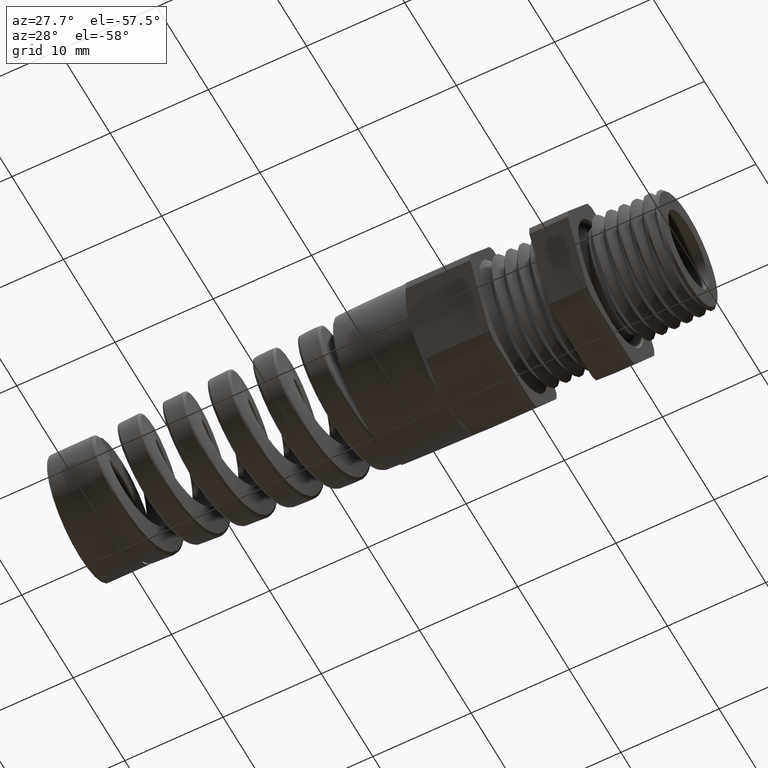
[diagram: clean part render]
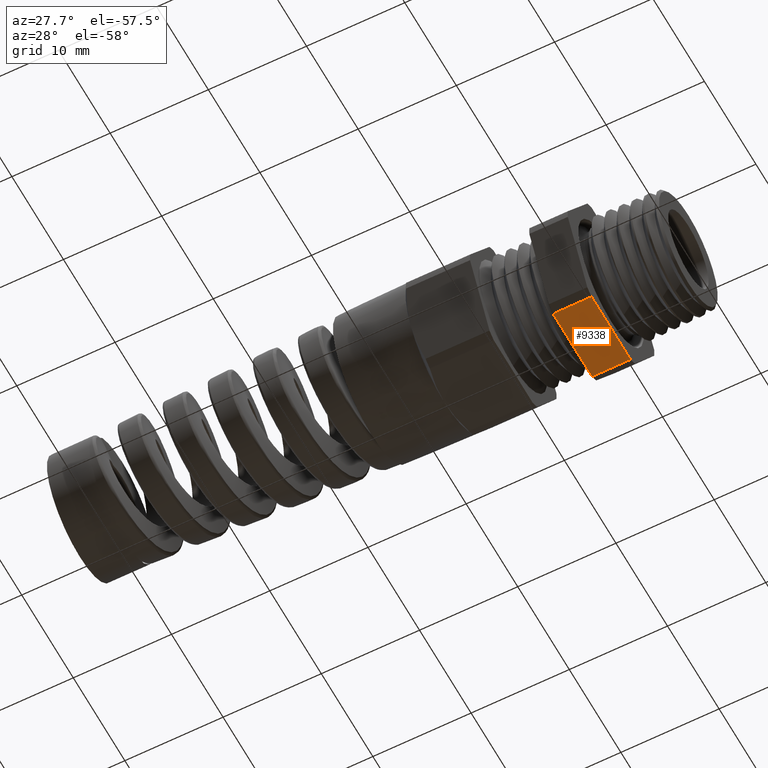
[diagram: same view with one face highlighted and labeled with its STEP entity id]
A machine part, auxiliary view. The second image highlights one B-rep face of the part: STEP entity #9338.
In plain terms, the highlighted planar face has unit normal (0, 0, -1).
Its self-contained STEP definition (entity closure, byte-faithful):
#2132 = CARTESIAN_POINT ( 'NONE',  ( -0.1542288557213930500, -0.1487923385124379500, -0.2950000000000002600 ) ) ;
#2133 = DIRECTION ( 'NONE',  ( 1.000000000000000000, 0.0000000000000000000, 0.0000000000000000000 ) ) ;
#2134 = VECTOR ( 'NONE', #2133, 39.37007874015748100 ) ;
#2135 = CARTESIAN_POINT ( 'NONE',  ( -1.612607445236302800, -0.1487923385124378900, -0.2950000000000003200 ) ) ;
#2136 = LINE ( 'NONE', #2135, #2134 ) ;
#2142 = DIRECTION ( 'NONE',  ( 1.000000000000000000, 0.0000000000000000000, 0.0000000000000000000 ) ) ;
#2143 = VECTOR ( 'NONE', #2142, 39.37007874015748100 ) ;
#2144 = CARTESIAN_POINT ( 'NONE',  ( -1.612607445236302800, 0.1487923385124379500, -0.2950000000000002600 ) ) ;
#2149 = LINE ( 'NONE', #2144, #2143 ) ;
#2158 = CARTESIAN_POINT ( 'NONE',  ( -0.1542288557213930500, 0.1487923385124379500, -0.2950000000000002600 ) ) ;
#2397 = DIRECTION ( 'NONE',  ( 0.0000000000000000000, 1.000000000000000000, 0.0000000000000000000 ) ) ;
#2398 = VECTOR ( 'NONE', #2397, 39.37007874015748100 ) ;
#2399 = CARTESIAN_POINT ( 'NONE',  ( -0.1542288557213930500, 0.2596999999999999900, -0.2950000000000002600 ) ) ;
#2400 = LINE ( 'NONE', #2399, #2398 ) ;
#3630 = CARTESIAN_POINT ( 'NONE',  ( 0.0000000000000000000, -0.1487923385124378900, -0.2950000000000003200 ) ) ;
#3631 = CARTESIAN_POINT ( 'NONE',  ( 0.0000000000000000000, 0.1487923385124379500, -0.2950000000000002600 ) ) ;
#3656 = DIRECTION ( 'NONE',  ( 0.0000000000000000000, 1.000000000000000000, 0.0000000000000000000 ) ) ;
#3657 = VECTOR ( 'NONE', #3656, 39.37007874015748100 ) ;
#3658 = CARTESIAN_POINT ( 'NONE',  ( 0.0000000000000000000, -0.1487923385124379500, -0.2950000000000002600 ) ) ;
#3659 = LINE ( 'NONE', #3658, #3657 ) ;
#3688 = DIRECTION ( 'NONE',  ( -1.000000000000000000, 0.0000000000000000000, 0.0000000000000000000 ) ) ;
#3689 = DIRECTION ( 'NONE',  ( 0.0000000000000000000, 0.0000000000000000000, -1.000000000000000000 ) ) ;
#3690 = CARTESIAN_POINT ( 'NONE',  ( -1.612607445236302800, -0.1487923385124379500, -0.2950000000000002600 ) ) ;
#3691 = AXIS2_PLACEMENT_3D ( 'NONE', #3690, #3689, #3688 ) ;
#3692 = PLANE ( 'NONE',  #3691 ) ;
#3693 = FACE_OUTER_BOUND ( 'NONE', #9359, .T. ) ;
#5009 = VERTEX_POINT ( 'NONE', #2158 ) ;
#5016 = EDGE_CURVE ( 'NONE', #5009, #9259, #2149, .T. ) ;
#5021 = EDGE_CURVE ( 'NONE', #5022, #9261, #2136, .T. ) ;
#5022 = VERTEX_POINT ( 'NONE', #2132 ) ;
#5175 = EDGE_CURVE ( 'NONE', #5022, #5009, #2400, .T. ) ;
#9259 = VERTEX_POINT ( 'NONE', #3631 ) ;
#9261 = VERTEX_POINT ( 'NONE', #3630 ) ;
#9290 = EDGE_CURVE ( 'NONE', #9261, #9259, #3659, .T. ) ;
#9335 = ORIENTED_EDGE ( 'NONE', *, *, #5021, .F. ) ;
#9336 = ORIENTED_EDGE ( 'NONE', *, *, #9290, .F. ) ;
#9338 = ADVANCED_FACE ( 'NONE', ( #3693 ), #3692, .T. ) ;
#9339 = ORIENTED_EDGE ( 'NONE', *, *, #5175, .T. ) ;
#9344 = ORIENTED_EDGE ( 'NONE', *, *, #5016, .T. ) ;
#9359 = EDGE_LOOP ( 'NONE', ( #9339, #9344, #9336, #9335 ) ) ;